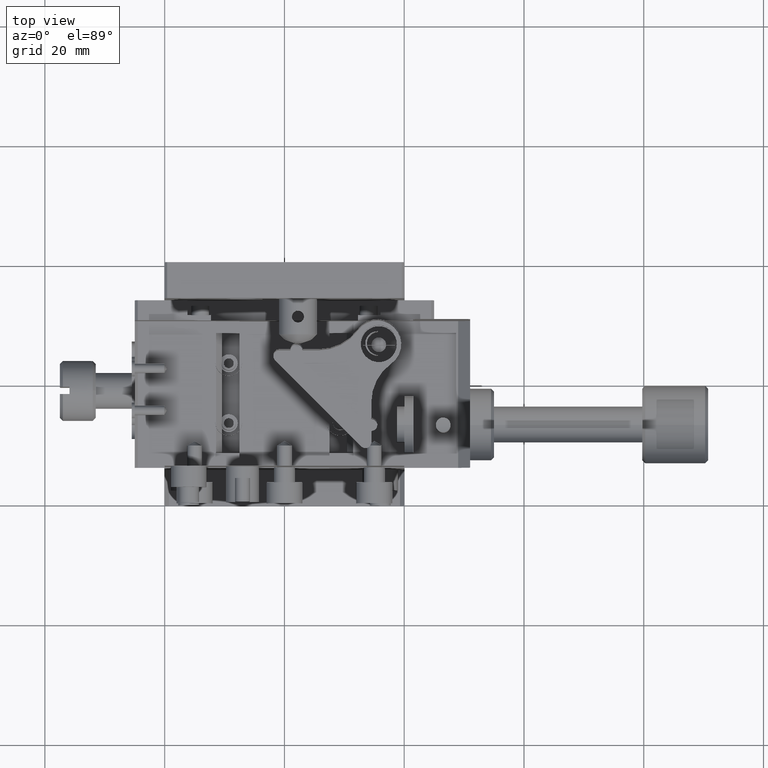
[diagram: clean part render]
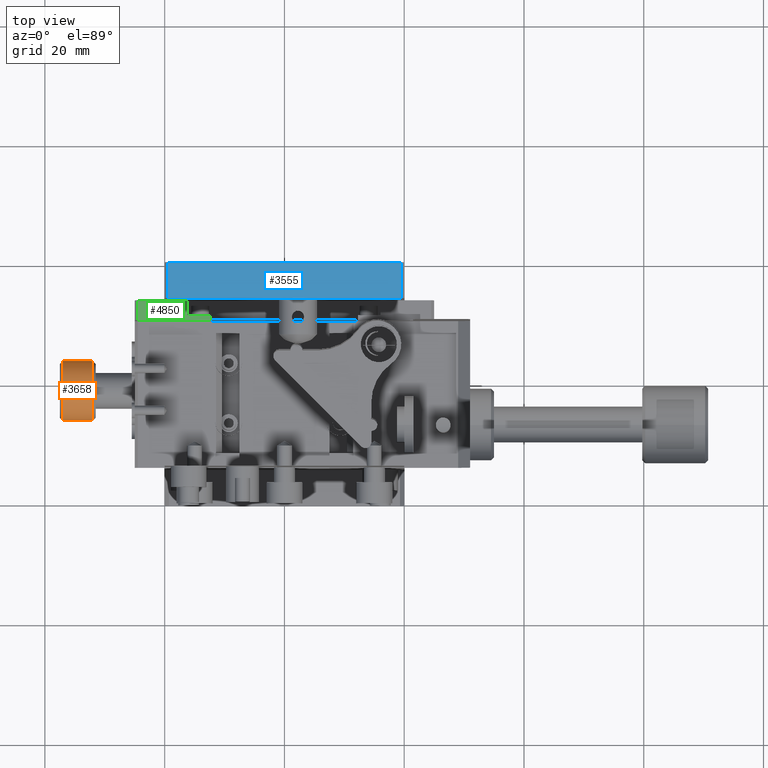
[diagram: same view with three faces highlighted in distinct colors, each labeled with its STEP entity id]
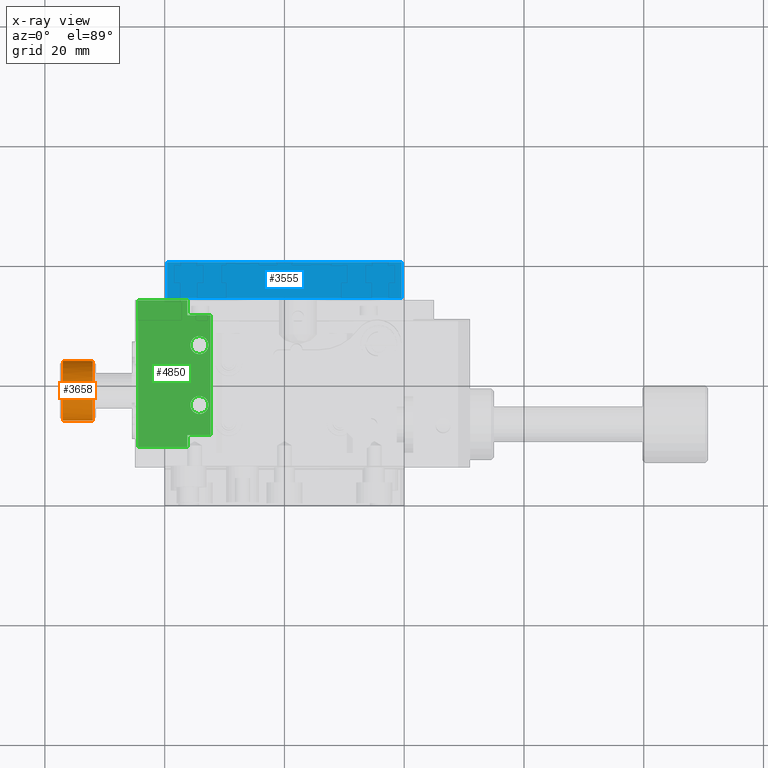
[diagram: x-ray of the same camera — body ghosted, the three highlighted faces saturated]
A machine part, top view with three faces highlighted in distinct colors.
The next image is the same camera in x-ray (body ghosted, the three faces saturated) — at least one of them is partly hidden behind the body in this view.
Their STEP definitions:

[orange] entity #3658 — the highlighted cylindrical surface (bore or boss wall) has radius 5 mm, axis along (1, 0, 0).
#16 = DIRECTION ( 'NONE',  ( -1.000000000000000000, -0.000000000000000000, -0.000000000000000000 ) ) ;
#28 = VECTOR ( 'NONE', #4608, 1000.000000000000000 ) ;
#411 = DIRECTION ( 'NONE',  ( 1.000000000000000000, 0.000000000000000000, -0.000000000000000000 ) ) ;
#595 = CIRCLE ( 'NONE', #8972, 5.000000000000000888 ) ;
#605 = ORIENTED_EDGE ( 'NONE', *, *, #10145, .F. ) ;
#932 = VERTEX_POINT ( 'NONE', #8121 ) ;
#1031 = DIRECTION ( 'NONE',  ( 1.000000000000000000, -0.000000000000000000, -0.000000000000000000 ) ) ;
#1115 = EDGE_CURVE ( 'NONE', #10580, #3322, #7891, .T. ) ;
#1146 = LINE ( 'NONE', #2154, #28 ) ;
#1195 = CARTESIAN_POINT ( 'NONE',  ( -16.99999999999383249, 19.60000000000000142, -33.96386945839636695 ) ) ;
#1206 = VERTEX_POINT ( 'NONE', #7793 ) ;
#1649 = DIRECTION ( 'NONE',  ( -1.000000000000000000, -0.000000000000000000, -0.000000000000000000 ) ) ;
#1725 = LINE ( 'NONE', #3437, #9427 ) ;
#1801 = CYLINDRICAL_SURFACE ( 'NONE', #8630, 5.000000000000000888 ) ;
#1911 = VERTEX_POINT ( 'NONE', #10009 ) ;
#1914 = CIRCLE ( 'NONE', #7904, 5.000000000000000888 ) ;
#2154 = CARTESIAN_POINT ( 'NONE',  ( -15.90000000000000036, 19.60000000000000142, -33.96386945839640248 ) ) ;
#2161 = DIRECTION ( 'NONE',  ( 0.000000000000000000, 0.000000000000000000, -1.000000000000000000 ) ) ;
#2164 = DIRECTION ( 'NONE',  ( 0.000000000000000000, 6.245004513516504751E-15, -1.000000000000000000 ) ) ;
#2187 = DIRECTION ( 'NONE',  ( 1.000000000000000000, 0.000000000000000000, 0.000000000000000000 ) ) ;
#2212 = ORIENTED_EDGE ( 'NONE', *, *, #4379, .F. ) ;
#2334 = EDGE_CURVE ( 'NONE', #10580, #8182, #9293, .T. ) ;
#2512 = EDGE_LOOP ( 'NONE', ( #605 ) ) ;
#2555 = CARTESIAN_POINT ( 'NONE',  ( -11.99999999994361133, 19.00000000000000000, -24.00000000000090949 ) ) ;
#2667 = CARTESIAN_POINT ( 'NONE',  ( -15.90000000000000036, 18.39999999999999858, -24.03613054160368279 ) ) ;
#2701 = FACE_OUTER_BOUND ( 'NONE', #2512, .T. ) ;
#2773 = CARTESIAN_POINT ( 'NONE',  ( -16.99999999999685230, 19.60000000000000142, -24.03613054160669193 ) ) ;
#3075 = CIRCLE ( 'NONE', #10431, 4.999999999999092282 ) ;
#3220 = ORIENTED_EDGE ( 'NONE', *, *, #6818, .F. ) ;
#3235 = ORIENTED_EDGE ( 'NONE', *, *, #8027, .F. ) ;
#3317 = ORIENTED_EDGE ( 'NONE', *, *, #10223, .F. ) ;
#3322 = VERTEX_POINT ( 'NONE', #2667 ) ;
#3391 = DIRECTION ( 'NONE',  ( 1.000000000000000000, 0.000000000000000000, 0.000000000000000000 ) ) ;
#3437 = CARTESIAN_POINT ( 'NONE',  ( -17.50000000000000000, 18.39999999999999858, -33.96386945839630300 ) ) ;
#3658 = ADVANCED_FACE ( 'NONE', ( #6733, #2701 ), #1801, .T. ) ;
#3745 = EDGE_CURVE ( 'NONE', #3322, #932, #595, .T. ) ;
#4350 = ORIENTED_EDGE ( 'NONE', *, *, #3745, .F. ) ;
#4379 = EDGE_CURVE ( 'NONE', #1206, #1911, #4815, .T. ) ;
#4490 = VECTOR ( 'NONE', #1649, 1000.000000000000000 ) ;
#4608 = DIRECTION ( 'NONE',  ( 1.000000000000000000, 0.000000000000000000, 0.000000000000000000 ) ) ;
#4668 = VECTOR ( 'NONE', #411, 1000.000000000000000 ) ;
#4815 = CIRCLE ( 'NONE', #7894, 5.000000000000000888 ) ;
#5030 = ORIENTED_EDGE ( 'NONE', *, *, #1115, .F. ) ;
#5065 = VERTEX_POINT ( 'NONE', #2773 ) ;
#5143 = EDGE_LOOP ( 'NONE', ( #5030, #7516, #3317, #2212, #3220, #10408, #3235, #4350 ) ) ;
#5353 = DIRECTION ( 'NONE',  ( 0.000000000000000000, 0.000000000000000000, -1.000000000000000000 ) ) ;
#5968 = DIRECTION ( 'NONE',  ( 0.000000000000000000, 0.000000000000000000, -1.000000000000000000 ) ) ;
#6733 = FACE_OUTER_BOUND ( 'NONE', #5143, .T. ) ;
#6797 = CARTESIAN_POINT ( 'NONE',  ( -16.99999999999685585, 18.39999999999999858, -33.96386945839330451 ) ) ;
#6818 = EDGE_CURVE ( 'NONE', #9031, #1206, #1146, .T. ) ;
#7299 = CARTESIAN_POINT ( 'NONE',  ( -15.90000000000000036, 19.00000000000000000, -29.00000000000000000 ) ) ;
#7508 = CARTESIAN_POINT ( 'NONE',  ( -11.99999999994361133, 19.00000000000000000, -29.00000000000000000 ) ) ;
#7516 = ORIENTED_EDGE ( 'NONE', *, *, #2334, .T. ) ;
#7673 = DIRECTION ( 'NONE',  ( 0.000000000000000000, 0.000000000000000000, 1.000000000000000000 ) ) ;
#7793 = CARTESIAN_POINT ( 'NONE',  ( -15.90000000000000036, 19.60000000000000142, -33.96386945839636695 ) ) ;
#7822 = CARTESIAN_POINT ( 'NONE',  ( -17.00000000000000000, 19.00000000000000000, -29.00000000000000000 ) ) ;
#7829 = EDGE_CURVE ( 'NONE', #9031, #5065, #1914, .T. ) ;
#7891 = LINE ( 'NONE', #8697, #4668 ) ;
#7894 = AXIS2_PLACEMENT_3D ( 'NONE', #7299, #16, #10551 ) ;
#7904 = AXIS2_PLACEMENT_3D ( 'NONE', #7822, #2187, #5353 ) ;
#8027 = EDGE_CURVE ( 'NONE', #932, #5065, #8998, .T. ) ;
#8121 = CARTESIAN_POINT ( 'NONE',  ( -15.90000000000000036, 19.60000000000000142, -24.03613054160368279 ) ) ;
#8182 = VERTEX_POINT ( 'NONE', #6797 ) ;
#8360 = CARTESIAN_POINT ( 'NONE',  ( -16.99999999999388223, 18.39999999999999858, -24.03613054160368279 ) ) ;
#8406 = VERTEX_POINT ( 'NONE', #2555 ) ;
#8630 = AXIS2_PLACEMENT_3D ( 'NONE', #9243, #3391, #5968 ) ;
#8658 = CARTESIAN_POINT ( 'NONE',  ( -15.90000000000000036, 19.00000000000000000, -29.00000000000000000 ) ) ;
#8697 = CARTESIAN_POINT ( 'NONE',  ( -17.50000000000000000, 18.39999999999999858, -24.03613054160370055 ) ) ;
#8972 = AXIS2_PLACEMENT_3D ( 'NONE', #8658, #9405, #2164 ) ;
#8998 = LINE ( 'NONE', #10536, #4490 ) ;
#9031 = VERTEX_POINT ( 'NONE', #1195 ) ;
#9233 = DIRECTION ( 'NONE',  ( -1.000000000000000000, -0.000000000000000000, 0.000000000000000000 ) ) ;
#9243 = CARTESIAN_POINT ( 'NONE',  ( -2.500000000000000000, 19.00000000000000000, -29.00000000000000000 ) ) ;
#9293 = CIRCLE ( 'NONE', #10464, 5.000000000000000888 ) ;
#9405 = DIRECTION ( 'NONE',  ( -1.000000000000000000, -0.000000000000000000, -0.000000000000000000 ) ) ;
#9427 = VECTOR ( 'NONE', #9233, 1000.000000000000000 ) ;
#9517 = DIRECTION ( 'NONE',  ( 1.000000000000000000, 0.000000000000000000, 0.000000000000000000 ) ) ;
#10009 = CARTESIAN_POINT ( 'NONE',  ( -15.90000000000000036, 18.39999999999999858, -33.96386945839632432 ) ) ;
#10145 = EDGE_CURVE ( 'NONE', #8406, #8406, #3075, .T. ) ;
#10223 = EDGE_CURVE ( 'NONE', #1911, #8182, #1725, .T. ) ;
#10305 = CARTESIAN_POINT ( 'NONE',  ( -17.00000000000000000, 19.00000000000000000, -29.00000000000000000 ) ) ;
#10408 = ORIENTED_EDGE ( 'NONE', *, *, #7829, .T. ) ;
#10431 = AXIS2_PLACEMENT_3D ( 'NONE', #7508, #1031, #7673 ) ;
#10464 = AXIS2_PLACEMENT_3D ( 'NONE', #10305, #9517, #2161 ) ;
#10536 = CARTESIAN_POINT ( 'NONE',  ( -15.90000000000000036, 19.60000000000000142, -24.03613054160370055 ) ) ;
#10551 = DIRECTION ( 'NONE',  ( 0.000000000000000000, -2.289834988289385049E-14, -1.000000000000000000 ) ) ;
#10580 = VERTEX_POINT ( 'NONE', #8360 ) ;

[blue] entity #3555 — the highlighted planar face has unit normal (0, 0, 1).
#406 = EDGE_CURVE ( 'NONE', #3970, #473, #1284, .T. ) ;
#473 = VERTEX_POINT ( 'NONE', #798 ) ;
#732 = VECTOR ( 'NONE', #7764, 1000.000000000000000 ) ;
#798 = CARTESIAN_POINT ( 'NONE',  ( 39.58000000000000540, 40.00000000000000000, -8.673617379884033500E-16 ) ) ;
#807 = DIRECTION ( 'NONE',  ( 0.000000000000000000, -1.000000000000000000, -0.000000000000000000 ) ) ;
#841 = DIRECTION ( 'NONE',  ( 0.000000000000000000, 0.000000000000000000, 1.000000000000000000 ) ) ;
#1284 = LINE ( 'NONE', #3884, #732 ) ;
#1422 = EDGE_CURVE ( 'NONE', #4776, #473, #5900, .T. ) ;
#1641 = FACE_OUTER_BOUND ( 'NONE', #9061, .T. ) ;
#2410 = LINE ( 'NONE', #3964, #5074 ) ;
#2682 = DIRECTION ( 'NONE',  ( 1.000000000000000000, 0.000000000000000000, -0.000000000000000000 ) ) ;
#3215 = DIRECTION ( 'NONE',  ( 1.000000000000000000, 0.000000000000000000, -0.000000000000000000 ) ) ;
#3250 = CARTESIAN_POINT ( 'NONE',  ( 0.4200000000000000400, 34.00000000000000000, 0.000000000000000000 ) ) ;
#3298 = DIRECTION ( 'NONE',  ( 1.000000000000000000, 0.000000000000000000, -0.000000000000000000 ) ) ;
#3555 = ADVANCED_FACE ( 'NONE', ( #1641 ), #4899, .T. ) ;
#3788 = VECTOR ( 'NONE', #807, 1000.000000000000000 ) ;
#3884 = CARTESIAN_POINT ( 'NONE',  ( 39.57999999999999829, 34.00000000000000000, 0.000000000000000000 ) ) ;
#3964 = CARTESIAN_POINT ( 'NONE',  ( 0.4200000000000000400, 34.00000000000000000, 0.000000000000000000 ) ) ;
#3970 = VERTEX_POINT ( 'NONE', #8977 ) ;
#4652 = CARTESIAN_POINT ( 'NONE',  ( 0.4200000000000000955, 40.00000000000000000, -1.355252715606880543E-17 ) ) ;
#4683 = EDGE_CURVE ( 'NONE', #4776, #6072, #7979, .T. ) ;
#4776 = VERTEX_POINT ( 'NONE', #4652 ) ;
#4899 = PLANE ( 'NONE',  #8804 ) ;
#5074 = VECTOR ( 'NONE', #3215, 1000.000000000000000 ) ;
#5613 = CARTESIAN_POINT ( 'NONE',  ( 0.4200000000000000955, 34.00000000000000000, -1.355252715606880543E-17 ) ) ;
#5900 = LINE ( 'NONE', #8201, #9616 ) ;
#6072 = VERTEX_POINT ( 'NONE', #5613 ) ;
#6966 = ORIENTED_EDGE ( 'NONE', *, *, #4683, .T. ) ;
#7764 = DIRECTION ( 'NONE',  ( -0.000000000000000000, 1.000000000000000000, 0.000000000000000000 ) ) ;
#7979 = LINE ( 'NONE', #3250, #3788 ) ;
#8175 = CARTESIAN_POINT ( 'NONE',  ( 0.4200000000000000400, 34.00000000000000000, 0.000000000000000000 ) ) ;
#8201 = CARTESIAN_POINT ( 'NONE',  ( 0.000000000000000000, 40.00000000000000000, 0.000000000000000000 ) ) ;
#8804 = AXIS2_PLACEMENT_3D ( 'NONE', #8175, #841, #3298 ) ;
#8977 = CARTESIAN_POINT ( 'NONE',  ( 39.58000000000000540, 34.00000000000000000, -1.734723475976806700E-15 ) ) ;
#9061 = EDGE_LOOP ( 'NONE', ( #10167, #10139, #10314, #6966 ) ) ;
#9616 = VECTOR ( 'NONE', #2682, 1000.000000000000000 ) ;
#10139 = ORIENTED_EDGE ( 'NONE', *, *, #406, .T. ) ;
#10167 = ORIENTED_EDGE ( 'NONE', *, *, #10467, .T. ) ;
#10314 = ORIENTED_EDGE ( 'NONE', *, *, #1422, .F. ) ;
#10467 = EDGE_CURVE ( 'NONE', #6072, #3970, #2410, .T. ) ;

[green] entity #4850 — the highlighted planar face has unit normal (0, 0, 1).
#64 = VECTOR ( 'NONE', #9454, 1000.000000000000000 ) ;
#83 = VERTEX_POINT ( 'NONE', #853 ) ;
#128 = EDGE_CURVE ( 'NONE', #3880, #6200, #5665, .T. ) ;
#131 = CARTESIAN_POINT ( 'NONE',  ( 2.881966011209840861, 33.99999999998568256, -21.00000000000000000 ) ) ;
#170 = LINE ( 'NONE', #6764, #1092 ) ;
#207 = CARTESIAN_POINT ( 'NONE',  ( 7.299999999999998934, 26.50000000000000355, -21.00000000000000000 ) ) ;
#230 = LINE ( 'NONE', #3538, #2929 ) ;
#232 = AXIS2_PLACEMENT_3D ( 'NONE', #3436, #8372, #248 ) ;
#248 = DIRECTION ( 'NONE',  ( 1.000000000000000000, 0.000000000000000000, 0.000000000000000000 ) ) ;
#616 = CARTESIAN_POINT ( 'NONE',  ( -4.500000000000009770, 9.500000000000001776, -21.00000000000000000 ) ) ;
#699 = VERTEX_POINT ( 'NONE', #4690 ) ;
#719 = VECTOR ( 'NONE', #2697, 1000.000000000000000 ) ;
#853 = CARTESIAN_POINT ( 'NONE',  ( -4.500000000000009770, 9.500000000000001776, -21.00000000000000000 ) ) ;
#887 = CARTESIAN_POINT ( 'NONE',  ( -4.500000000000009770, 34.00000000000000000, -21.00000000000000000 ) ) ;
#908 = CARTESIAN_POINT ( 'NONE',  ( 7.699999999999990408, 11.50000000000000000, -21.00000000000000000 ) ) ;
#1042 = ORIENTED_EDGE ( 'NONE', *, *, #4139, .T. ) ;
#1092 = VECTOR ( 'NONE', #2790, 1000.000000000000000 ) ;
#1102 = VECTOR ( 'NONE', #4959, 1000.000000000000000 ) ;
#1128 = EDGE_CURVE ( 'NONE', #4171, #83, #1307, .T. ) ;
#1215 = EDGE_CURVE ( 'NONE', #6110, #6110, #5700, .T. ) ;
#1253 = CARTESIAN_POINT ( 'NONE',  ( -4.500000000000009770, 34.00000000000000000, -21.00000000000000000 ) ) ;
#1307 = LINE ( 'NONE', #3014, #64 ) ;
#1475 = LINE ( 'NONE', #2528, #6168 ) ;
#1521 = CARTESIAN_POINT ( 'NONE',  ( 7.699999999999990408, 31.50000000000000000, -21.00000000000000000 ) ) ;
#1539 = CARTESIAN_POINT ( 'NONE',  ( 0.000000000000000000, 34.00000000000000000, -21.00000000000000000 ) ) ;
#1645 = ORIENTED_EDGE ( 'NONE', *, *, #4023, .T. ) ;
#1698 = FACE_OUTER_BOUND ( 'NONE', #4739, .T. ) ;
#1925 = EDGE_CURVE ( 'NONE', #6200, #6405, #5924, .T. ) ;
#2332 = DIRECTION ( 'NONE',  ( -0.000000000000000000, 1.000000000000000000, 0.000000000000000000 ) ) ;
#2528 = CARTESIAN_POINT ( 'NONE',  ( 0.000000000000000000, 34.00000000000000000, -21.00000000000000000 ) ) ;
#2631 = LINE ( 'NONE', #6640, #7040 ) ;
#2697 = DIRECTION ( 'NONE',  ( -1.000000000000000000, -0.000000000000000000, 0.000000000000000000 ) ) ;
#2790 = DIRECTION ( 'NONE',  ( 1.000000000000000000, 0.000000000000000000, -0.000000000000000000 ) ) ;
#2901 = DIRECTION ( 'NONE',  ( -0.000000000000000000, -0.000000000000000000, -1.000000000000000000 ) ) ;
#2929 = VECTOR ( 'NONE', #5454, 1000.000000000000000 ) ;
#3014 = CARTESIAN_POINT ( 'NONE',  ( -4.500000000000009770, 9.500000000000001776, -21.00000000000000000 ) ) ;
#3151 = CIRCLE ( 'NONE', #232, 1.499999999999999556 ) ;
#3321 = ORIENTED_EDGE ( 'NONE', *, *, #10061, .F. ) ;
#3402 = ORIENTED_EDGE ( 'NONE', *, *, #7374, .T. ) ;
#3436 = CARTESIAN_POINT ( 'NONE',  ( 5.799999999999999822, 26.50000000000000355, -21.00000000000000000 ) ) ;
#3528 = FACE_BOUND ( 'NONE', #8714, .T. ) ;
#3534 = ORIENTED_EDGE ( 'NONE', *, *, #5748, .T. ) ;
#3538 = CARTESIAN_POINT ( 'NONE',  ( 0.000000000000000000, 34.00000000000000000, -21.00000000000000000 ) ) ;
#3880 = VERTEX_POINT ( 'NONE', #1521 ) ;
#4023 = EDGE_CURVE ( 'NONE', #7531, #7531, #3151, .T. ) ;
#4126 = AXIS2_PLACEMENT_3D ( 'NONE', #8298, #9102, #8241 ) ;
#4139 = EDGE_CURVE ( 'NONE', #83, #7634, #6172, .T. ) ;
#4171 = VERTEX_POINT ( 'NONE', #1253 ) ;
#4326 = FACE_BOUND ( 'NONE', #4649, .T. ) ;
#4474 = EDGE_CURVE ( 'NONE', #7634, #699, #2631, .T. ) ;
#4550 = EDGE_CURVE ( 'NONE', #9016, #6415, #230, .T. ) ;
#4649 = EDGE_LOOP ( 'NONE', ( #1645 ) ) ;
#4690 = CARTESIAN_POINT ( 'NONE',  ( 3.799999999999999822, 11.50000000000000000, -21.00000000000000000 ) ) ;
#4739 = EDGE_LOOP ( 'NONE', ( #3402, #9199, #3321, #10036, #1042, #4904, #3534, #8969, #9857, #10035 ) ) ;
#4850 = ADVANCED_FACE ( 'NONE', ( #1698, #4326, #3528 ), #6752, .T. ) ;
#4904 = ORIENTED_EDGE ( 'NONE', *, *, #4474, .T. ) ;
#4959 = DIRECTION ( 'NONE',  ( -1.000000000000000000, -0.000000000000000000, 0.000000000000000000 ) ) ;
#5454 = DIRECTION ( 'NONE',  ( -1.000000000000000000, -0.000000000000000000, 0.000000000000000000 ) ) ;
#5665 = LINE ( 'NONE', #7384, #1102 ) ;
#5700 = CIRCLE ( 'NONE', #6731, 1.499999999999999556 ) ;
#5748 = EDGE_CURVE ( 'NONE', #699, #7011, #170, .T. ) ;
#5924 = LINE ( 'NONE', #10058, #6882 ) ;
#5944 = DIRECTION ( 'NONE',  ( -0.000000000000000000, 1.000000000000000000, 0.000000000000000000 ) ) ;
#6078 = CARTESIAN_POINT ( 'NONE',  ( 5.799999999999999822, 16.50000000000000000, -21.00000000000000000 ) ) ;
#6110 = VERTEX_POINT ( 'NONE', #9499 ) ;
#6168 = VECTOR ( 'NONE', #8978, 1000.000000000000000 ) ;
#6172 = LINE ( 'NONE', #616, #6723 ) ;
#6177 = DIRECTION ( 'NONE',  ( 1.000000000000000000, 0.000000000000000000, 0.000000000000000000 ) ) ;
#6200 = VERTEX_POINT ( 'NONE', #6754 ) ;
#6310 = CARTESIAN_POINT ( 'NONE',  ( 3.799999999999999822, 34.00000000000000000, -21.00000000000000000 ) ) ;
#6405 = VERTEX_POINT ( 'NONE', #6310 ) ;
#6415 = VERTEX_POINT ( 'NONE', #1539 ) ;
#6640 = CARTESIAN_POINT ( 'NONE',  ( 3.800000000000000266, 9.500000000000001776, -21.00000000000000000 ) ) ;
#6723 = VECTOR ( 'NONE', #8591, 1000.000000000000000 ) ;
#6731 = AXIS2_PLACEMENT_3D ( 'NONE', #6078, #2901, #6177 ) ;
#6752 = PLANE ( 'NONE',  #4126 ) ;
#6754 = CARTESIAN_POINT ( 'NONE',  ( 3.799999999999999822, 31.50000000000000000, -21.00000000000000000 ) ) ;
#6764 = CARTESIAN_POINT ( 'NONE',  ( -4.500000000000009770, 11.50000000000000000, -21.00000000000000000 ) ) ;
#6882 = VECTOR ( 'NONE', #7339, 1000.000000000000000 ) ;
#7011 = VERTEX_POINT ( 'NONE', #908 ) ;
#7040 = VECTOR ( 'NONE', #5944, 1000.000000000000000 ) ;
#7316 = CARTESIAN_POINT ( 'NONE',  ( 7.699999999999990408, 9.500000000000001776, -21.00000000000000000 ) ) ;
#7324 = EDGE_CURVE ( 'NONE', #7011, #3880, #8825, .T. ) ;
#7339 = DIRECTION ( 'NONE',  ( -0.000000000000000000, 1.000000000000000000, 0.000000000000000000 ) ) ;
#7343 = CARTESIAN_POINT ( 'NONE',  ( 3.799999999999999822, 9.500000000000001776, -21.00000000000000000 ) ) ;
#7374 = EDGE_CURVE ( 'NONE', #6405, #9016, #10047, .T. ) ;
#7384 = CARTESIAN_POINT ( 'NONE',  ( -4.500000000000009770, 31.50000000000000000, -21.00000000000000000 ) ) ;
#7531 = VERTEX_POINT ( 'NONE', #207 ) ;
#7634 = VERTEX_POINT ( 'NONE', #7343 ) ;
#8241 = DIRECTION ( 'NONE',  ( 1.000000000000000000, 0.000000000000000000, -0.000000000000000000 ) ) ;
#8298 = CARTESIAN_POINT ( 'NONE',  ( -4.500000000000009770, 9.500000000000001776, -21.00000000000000000 ) ) ;
#8372 = DIRECTION ( 'NONE',  ( -0.000000000000000000, -0.000000000000000000, -1.000000000000000000 ) ) ;
#8591 = DIRECTION ( 'NONE',  ( 1.000000000000000000, 0.000000000000000000, -0.000000000000000000 ) ) ;
#8714 = EDGE_LOOP ( 'NONE', ( #9252 ) ) ;
#8825 = LINE ( 'NONE', #7316, #10289 ) ;
#8969 = ORIENTED_EDGE ( 'NONE', *, *, #7324, .T. ) ;
#8978 = DIRECTION ( 'NONE',  ( 1.000000000000000000, 0.000000000000000000, -0.000000000000000000 ) ) ;
#9016 = VERTEX_POINT ( 'NONE', #131 ) ;
#9102 = DIRECTION ( 'NONE',  ( 0.000000000000000000, 0.000000000000000000, 1.000000000000000000 ) ) ;
#9199 = ORIENTED_EDGE ( 'NONE', *, *, #4550, .T. ) ;
#9252 = ORIENTED_EDGE ( 'NONE', *, *, #1215, .T. ) ;
#9454 = DIRECTION ( 'NONE',  ( 0.000000000000000000, -1.000000000000000000, -0.000000000000000000 ) ) ;
#9499 = CARTESIAN_POINT ( 'NONE',  ( 7.299999999999998934, 16.50000000000000000, -21.00000000000000000 ) ) ;
#9857 = ORIENTED_EDGE ( 'NONE', *, *, #128, .T. ) ;
#10035 = ORIENTED_EDGE ( 'NONE', *, *, #1925, .T. ) ;
#10036 = ORIENTED_EDGE ( 'NONE', *, *, #1128, .T. ) ;
#10047 = LINE ( 'NONE', #887, #719 ) ;
#10058 = CARTESIAN_POINT ( 'NONE',  ( 3.800000000000000266, 9.500000000000001776, -21.00000000000000000 ) ) ;
#10061 = EDGE_CURVE ( 'NONE', #4171, #6415, #1475, .T. ) ;
#10289 = VECTOR ( 'NONE', #2332, 1000.000000000000000 ) ;